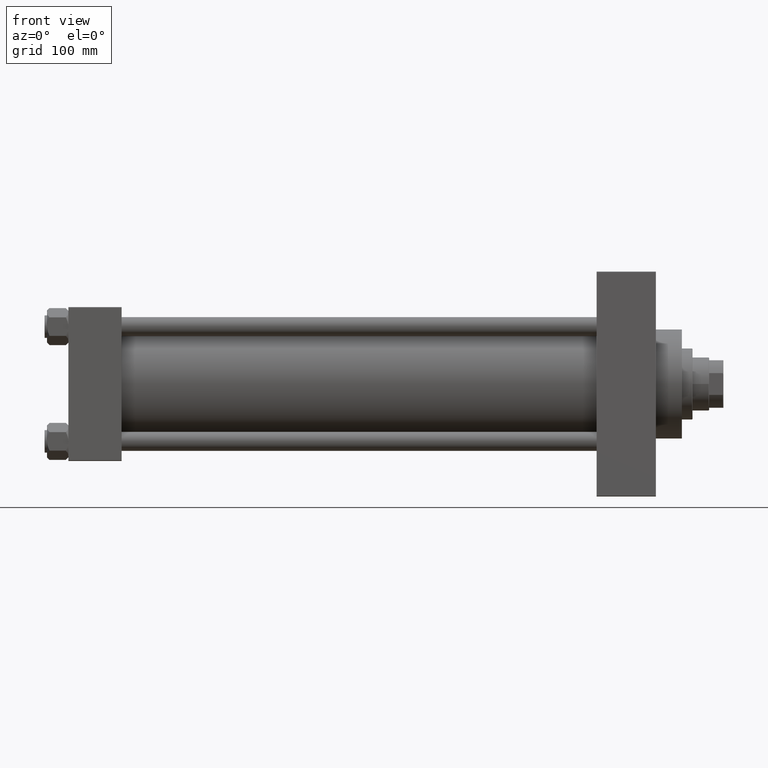
[diagram: clean part render]
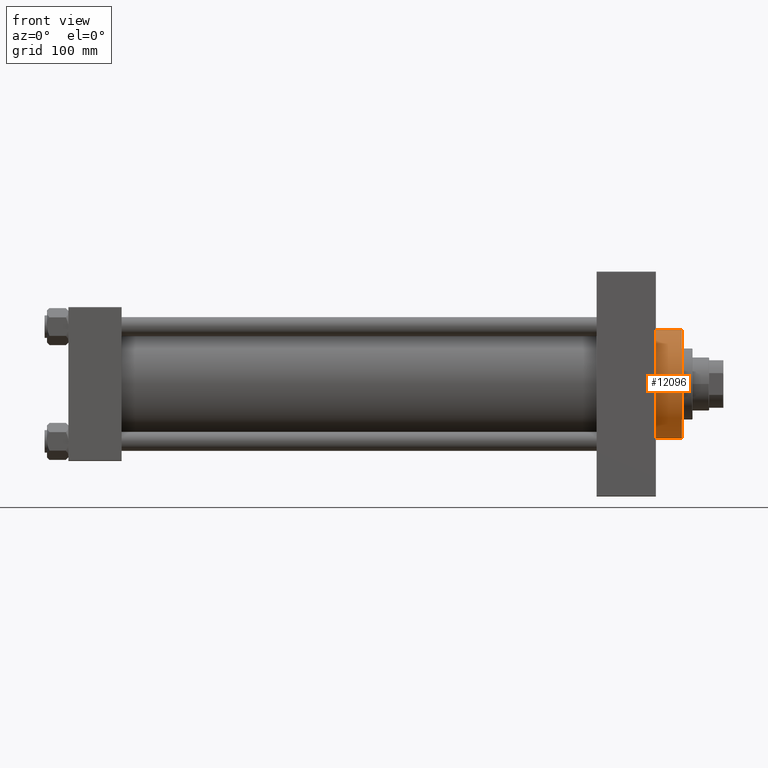
[diagram: same view with one face highlighted and labeled with its STEP entity id]
A machine part, front view. The second image highlights one B-rep face of the part: STEP entity #12096.
In plain terms, the highlighted cylindrical surface (partial cylindrical patch) has radius 46 mm, axis along (-1, -0, -0).
Its self-contained STEP definition (entity closure, byte-faithful):
#569 = CARTESIAN_POINT ( 'NONE',  ( 496.0000000000000000, 0.000000000000000000, 46.00000000000000000 ) ) ;
#2845 = DIRECTION ( 'NONE',  ( -1.000000000000000000, -0.000000000000000000, -0.000000000000000000 ) ) ;
#6085 = ORIENTED_EDGE ( 'NONE', *, *, #34926, .F. ) ;
#6373 = FACE_OUTER_BOUND ( 'NONE', #32183, .T. ) ;
#6677 = VECTOR ( 'NONE', #2845, 1000.000000000000000 ) ;
#8239 = VERTEX_POINT ( 'NONE', #569 ) ;
#9087 = VERTEX_POINT ( 'NONE', #13436 ) ;
#9518 = DIRECTION ( 'NONE',  ( 0.000000000000000000, 0.000000000000000000, -1.000000000000000000 ) ) ;
#10581 = AXIS2_PLACEMENT_3D ( 'NONE', #43500, #28537, #43260 ) ;
#12096 = ADVANCED_FACE ( 'NONE', ( #6373 ), #22026, .T. ) ;
#13127 = CARTESIAN_POINT ( 'NONE',  ( 496.0000000000000000, 0.000000000000000000, 0.000000000000000000 ) ) ;
#13436 = CARTESIAN_POINT ( 'NONE',  ( 518.0000000000000000, 5.633375276077824704E-15, -46.00000000000000000 ) ) ;
#15305 = ORIENTED_EDGE ( 'NONE', *, *, #34765, .T. ) ;
#16735 = EDGE_CURVE ( 'NONE', #8239, #16829, #43275, .T. ) ;
#16829 = VERTEX_POINT ( 'NONE', #22494 ) ;
#17900 = ORIENTED_EDGE ( 'NONE', *, *, #19055, .F. ) ;
#19055 = EDGE_CURVE ( 'NONE', #9087, #16829, #40621, .T. ) ;
#21704 = CARTESIAN_POINT ( 'NONE',  ( 518.0000000000000000, 0.000000000000000000, 46.00000000000000000 ) ) ;
#21715 = AXIS2_PLACEMENT_3D ( 'NONE', #13127, #42537, #9518 ) ;
#22026 = CYLINDRICAL_SURFACE ( 'NONE', #10581, 46.00000000000000000 ) ;
#22286 = DIRECTION ( 'NONE',  ( -1.000000000000000000, -0.000000000000000000, -0.000000000000000000 ) ) ;
#22494 = CARTESIAN_POINT ( 'NONE',  ( 496.0000000000000000, 5.633375276077824704E-15, -46.00000000000000000 ) ) ;
#22844 = AXIS2_PLACEMENT_3D ( 'NONE', #27632, #45258, #34869 ) ;
#24790 = CARTESIAN_POINT ( 'NONE',  ( 518.0000000000000000, 0.000000000000000000, 46.00000000000000000 ) ) ;
#27632 = CARTESIAN_POINT ( 'NONE',  ( 518.0000000000000000, 0.000000000000000000, 0.000000000000000000 ) ) ;
#28537 = DIRECTION ( 'NONE',  ( -1.000000000000000000, -0.000000000000000000, -0.000000000000000000 ) ) ;
#32183 = EDGE_LOOP ( 'NONE', ( #17900, #6085, #15305, #35993 ) ) ;
#34398 = CIRCLE ( 'NONE', #22844, 46.00000000000000000 ) ;
#34765 = EDGE_CURVE ( 'NONE', #46418, #8239, #47695, .T. ) ;
#34869 = DIRECTION ( 'NONE',  ( 0.000000000000000000, 0.000000000000000000, -1.000000000000000000 ) ) ;
#34926 = EDGE_CURVE ( 'NONE', #46418, #9087, #34398, .T. ) ;
#35993 = ORIENTED_EDGE ( 'NONE', *, *, #16735, .T. ) ;
#40131 = CARTESIAN_POINT ( 'NONE',  ( 518.0000000000000000, 5.633375276077824704E-15, -46.00000000000000000 ) ) ;
#40621 = LINE ( 'NONE', #40131, #42442 ) ;
#42442 = VECTOR ( 'NONE', #22286, 1000.000000000000000 ) ;
#42537 = DIRECTION ( 'NONE',  ( 1.000000000000000000, 0.000000000000000000, 0.000000000000000000 ) ) ;
#43260 = DIRECTION ( 'NONE',  ( 0.000000000000000000, 0.000000000000000000, 1.000000000000000000 ) ) ;
#43275 = CIRCLE ( 'NONE', #21715, 46.00000000000000000 ) ;
#43500 = CARTESIAN_POINT ( 'NONE',  ( 518.0000000000000000, 0.000000000000000000, 0.000000000000000000 ) ) ;
#45258 = DIRECTION ( 'NONE',  ( 1.000000000000000000, 0.000000000000000000, 0.000000000000000000 ) ) ;
#46418 = VERTEX_POINT ( 'NONE', #21704 ) ;
#47695 = LINE ( 'NONE', #24790, #6677 ) ;